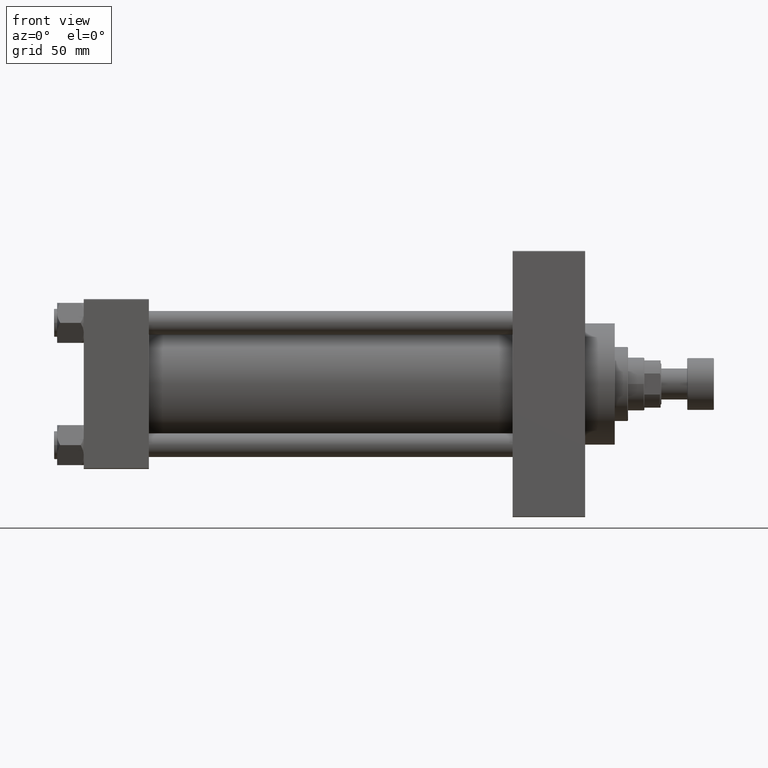
[diagram: clean part render]
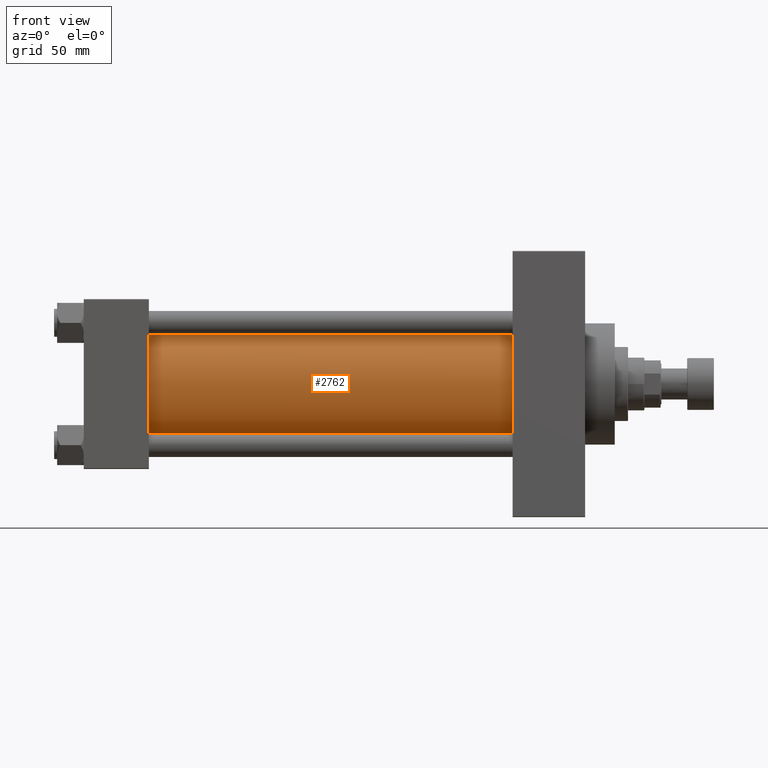
[diagram: same view with one face highlighted and labeled with its STEP entity id]
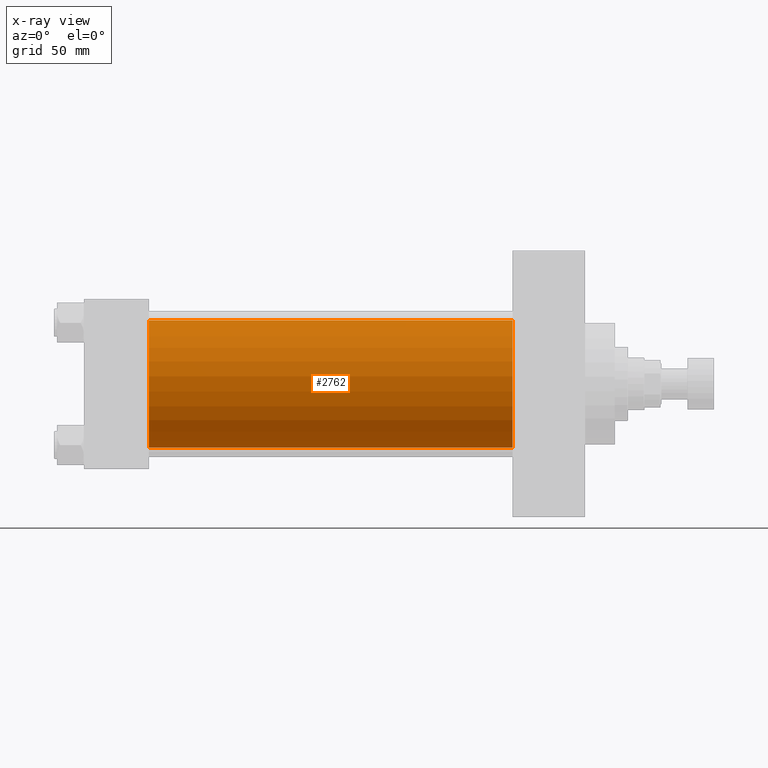
[diagram: x-ray of the same camera — body ghosted, the highlighted face saturated]
A machine part, front view. The second image highlights one B-rep face of the part: STEP entity #2762.
The next image is the same camera in x-ray: the body ghosted, the highlighted face saturated — about 0% of this face is hidden behind the body in this view.
In plain terms, the highlighted cylindrical surface (partial cylindrical patch) has radius 43 mm, axis along (-1, -0, -0).
Its self-contained STEP definition (entity closure, byte-faithful):
#735 = EDGE_LOOP ( 'NONE', ( #29409, #21083, #10480, #9327 ) ) ;
#1871 = CIRCLE ( 'NONE', #47937, 43.00000000000000000 ) ;
#2641 = VERTEX_POINT ( 'NONE', #33364 ) ;
#2762 = ADVANCED_FACE ( 'NONE', ( #30898 ), #31614, .T. ) ;
#4462 = DIRECTION ( 'NONE',  ( 0.000000000000000000, 0.000000000000000000, -1.000000000000000000 ) ) ;
#5279 = CARTESIAN_POINT ( 'NONE',  ( 290.0000000000000000, 2.663896022368408223E-15, -43.00000000000000000 ) ) ;
#5474 = DIRECTION ( 'NONE',  ( 0.000000000000000000, 0.000000000000000000, 1.000000000000000000 ) ) ;
#5514 = LINE ( 'NONE', #5279, #10251 ) ;
#6897 = CIRCLE ( 'NONE', #17824, 43.00000000000000000 ) ;
#7437 = AXIS2_PLACEMENT_3D ( 'NONE', #20144, #9147, #5474 ) ;
#7499 = CARTESIAN_POINT ( 'NONE',  ( 43.99999999999998579, -2.602085213965210642E-15, 0.000000000000000000 ) ) ;
#9147 = DIRECTION ( 'NONE',  ( -1.000000000000000000, -0.000000000000000000, -0.000000000000000000 ) ) ;
#9327 = ORIENTED_EDGE ( 'NONE', *, *, #29138, .T. ) ;
#10251 = VECTOR ( 'NONE', #16769, 1000.000000000000000 ) ;
#10480 = ORIENTED_EDGE ( 'NONE', *, *, #16845, .T. ) ;
#15938 = DIRECTION ( 'NONE',  ( 1.000000000000000000, 0.000000000000000000, 0.000000000000000000 ) ) ;
#16769 = DIRECTION ( 'NONE',  ( -1.000000000000000000, -0.000000000000000000, -0.000000000000000000 ) ) ;
#16773 = VERTEX_POINT ( 'NONE', #27042 ) ;
#16845 = EDGE_CURVE ( 'NONE', #30659, #16773, #34366, .T. ) ;
#17824 = AXIS2_PLACEMENT_3D ( 'NONE', #37446, #15938, #4462 ) ;
#20144 = CARTESIAN_POINT ( 'NONE',  ( 290.0000000000000000, -2.602085213965210642E-15, 0.000000000000000000 ) ) ;
#21083 = ORIENTED_EDGE ( 'NONE', *, *, #41346, .F. ) ;
#23683 = EDGE_CURVE ( 'NONE', #2641, #28376, #5514, .T. ) ;
#27042 = CARTESIAN_POINT ( 'NONE',  ( 43.99999999999998579, -2.602085213965210642E-15, 43.00000000000000000 ) ) ;
#28376 = VERTEX_POINT ( 'NONE', #41149 ) ;
#29138 = EDGE_CURVE ( 'NONE', #16773, #28376, #1871, .T. ) ;
#29409 = ORIENTED_EDGE ( 'NONE', *, *, #23683, .F. ) ;
#30659 = VERTEX_POINT ( 'NONE', #40641 ) ;
#30898 = FACE_OUTER_BOUND ( 'NONE', #735, .T. ) ;
#31614 = CYLINDRICAL_SURFACE ( 'NONE', #7437, 43.00000000000000000 ) ;
#33364 = CARTESIAN_POINT ( 'NONE',  ( 290.0000000000000000, 2.663896022368408223E-15, -43.00000000000000000 ) ) ;
#34366 = LINE ( 'NONE', #35079, #43723 ) ;
#35079 = CARTESIAN_POINT ( 'NONE',  ( 290.0000000000000000, -2.602085213965210642E-15, 43.00000000000000000 ) ) ;
#37446 = CARTESIAN_POINT ( 'NONE',  ( 290.0000000000000000, -2.602085213965210642E-15, 0.000000000000000000 ) ) ;
#40641 = CARTESIAN_POINT ( 'NONE',  ( 290.0000000000000000, -2.602085213965210642E-15, 43.00000000000000000 ) ) ;
#40980 = DIRECTION ( 'NONE',  ( 0.000000000000000000, 0.000000000000000000, 1.000000000000000000 ) ) ;
#41149 = CARTESIAN_POINT ( 'NONE',  ( 43.99999999999998579, 2.663896022368408223E-15, -43.00000000000000000 ) ) ;
#41346 = EDGE_CURVE ( 'NONE', #30659, #2641, #6897, .T. ) ;
#41457 = DIRECTION ( 'NONE',  ( 1.000000000000000000, -0.000000000000000000, 0.000000000000000000 ) ) ;
#43723 = VECTOR ( 'NONE', #46104, 1000.000000000000000 ) ;
#46104 = DIRECTION ( 'NONE',  ( -1.000000000000000000, -0.000000000000000000, -0.000000000000000000 ) ) ;
#47937 = AXIS2_PLACEMENT_3D ( 'NONE', #7499, #41457, #40980 ) ;